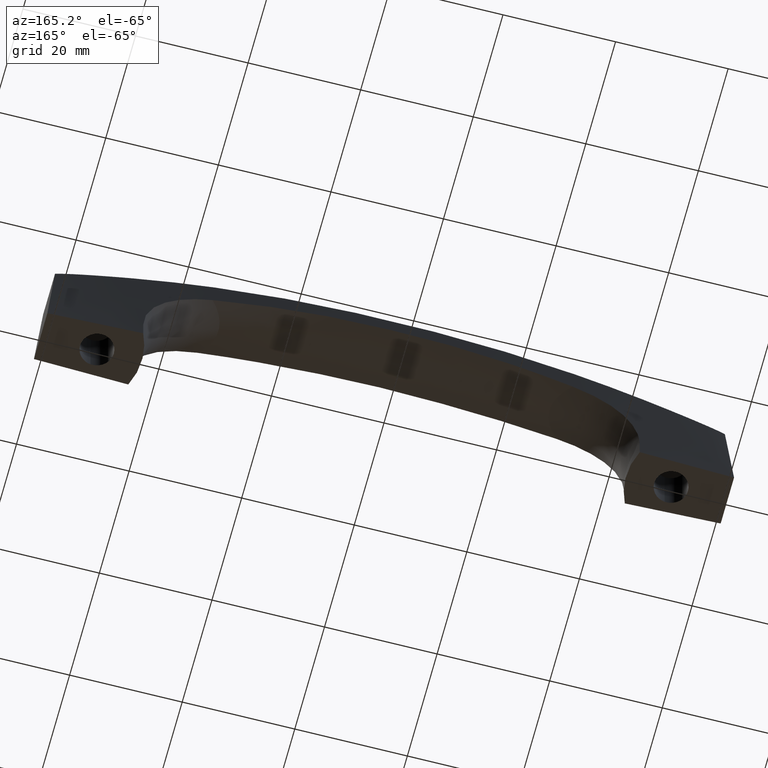
[diagram: clean part render]
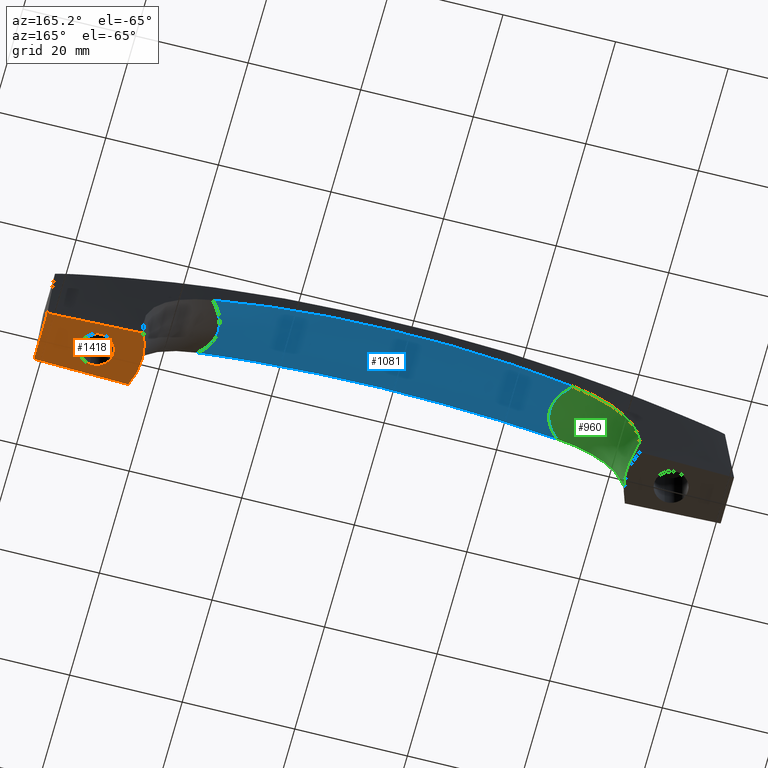
[diagram: same view with three faces highlighted in distinct colors, each labeled with its STEP entity id]
A machine part, auxiliary view with three faces highlighted in distinct colors.
Their STEP definitions:

[orange] entity #1418 — the highlighted face is a freeform B-spline surface patch.
#271=CARTESIAN_POINT('',(51.354402704031180,-2.979028579083759,2.839428E-017));
#272=VERTEX_POINT('',#271);
#278=CARTESIAN_POINT('',(48.000300000000003,0.0,0.0));
#279=VERTEX_POINT('',#278);
#280=CARTESIAN_POINT('',(51.354402704031180,-2.979028579083760,2.839428E-017));
#281=CARTESIAN_POINT('',(51.177972359017275,-3.000000000000000,0.0));
#282=CARTESIAN_POINT('',(51.000300000000003,-3.0,0.0));
#283=CARTESIAN_POINT('',(48.000299999999982,-3.0,0.0));
#284=CARTESIAN_POINT('',(48.000300000000003,0.0,0.0));
#292=(BOUNDED_CURVE()B_SPLINE_CURVE(2,(#280,#281,#282,#283,#284),.UNSPECIFIED.,.F.,.U.)B_SPLINE_CURVE_WITH_KNOTS((3,2,3),(0.229562473508734,0.250000000000000,0.500000000000000),.UNSPECIFIED.)CURVE()GEOMETRIC_REPRESENTATION_ITEM()RATIONAL_B_SPLINE_CURVE((0.956026754174341,0.976055948325551,1.0,0.707106781186548,1.0))REPRESENTATION_ITEM(''));
#293=EDGE_CURVE('',#272,#279,#292,.T.);
#295=CARTESIAN_POINT('',(50.817154380951891,2.994404395238473,2.775558E-017));
#296=VERTEX_POINT('',#295);
#297=CARTESIAN_POINT('',(48.000300000000003,0.0,0.0));
#298=CARTESIAN_POINT('',(48.000299999999989,2.822118199879488,0.0));
#299=CARTESIAN_POINT('',(50.817154380951891,2.994404395238473,2.775558E-017));
#307=(BOUNDED_CURVE()B_SPLINE_CURVE(2,(#297,#298,#299),.UNSPECIFIED.,.F.,.U.)B_SPLINE_CURVE_WITH_KNOTS((3,3),(0.500000000000000,0.739332962190852),.UNSPECIFIED.)CURVE()GEOMETRIC_REPRESENTATION_ITEM()RATIONAL_B_SPLINE_CURVE((1.0,0.719603993343052,0.976072041563651))REPRESENTATION_ITEM(''));
#308=EDGE_CURVE('',#279,#296,#307,.T.);
#382=CARTESIAN_POINT('',(54.000300000000003,0.0,0.0));
#383=VERTEX_POINT('',#382);
#384=CARTESIAN_POINT('',(50.817154380951891,2.994404395238472,2.775558E-017));
#385=CARTESIAN_POINT('',(50.908641709659442,3.0,0.0));
#386=CARTESIAN_POINT('',(51.000300000000003,3.0,0.0));
#387=CARTESIAN_POINT('',(54.000300000000010,3.0,0.0));
#388=CARTESIAN_POINT('',(54.000300000000003,0.0,0.0));
#396=(BOUNDED_CURVE()B_SPLINE_CURVE(2,(#384,#385,#386,#387,#388),.UNSPECIFIED.,.F.,.U.)B_SPLINE_CURVE_WITH_KNOTS((3,2,3),(0.739332962190852,0.750000000000000,1.0),.UNSPECIFIED.)CURVE()GEOMETRIC_REPRESENTATION_ITEM()RATIONAL_B_SPLINE_CURVE((0.976072041563651,0.987502787843496,1.0,0.707106781186548,1.0))REPRESENTATION_ITEM(''));
#397=EDGE_CURVE('',#296,#383,#396,.T.);
#399=CARTESIAN_POINT('',(54.000300000000003,0.0,0.0));
#400=CARTESIAN_POINT('',(54.000300000000010,-2.664523577744385,0.0));
#401=CARTESIAN_POINT('',(51.354402704031180,-2.979028579083760,2.839428E-017));
#409=(BOUNDED_CURVE()B_SPLINE_CURVE(2,(#399,#400,#401),.UNSPECIFIED.,.F.,.U.)B_SPLINE_CURVE_WITH_KNOTS((3,3),(0.0,0.229562473508734),.UNSPECIFIED.)CURVE()GEOMETRIC_REPRESENTATION_ITEM()RATIONAL_B_SPLINE_CURVE((1.0,0.731050832860996,0.956026754174341))REPRESENTATION_ITEM(''));
#410=EDGE_CURVE('',#383,#272,#409,.T.);
#525=CARTESIAN_POINT('',(44.102548297613751,5.023843930014119,0.0));
#526=VERTEX_POINT('',#525);
#534=CARTESIAN_POINT('',(44.102548297613751,-5.023843930014130,0.0));
#535=VERTEX_POINT('',#534);
#536=CARTESIAN_POINT('',(44.102548297613843,-5.023843930014089,0.0));
#537=CARTESIAN_POINT('',(41.786565283648393,-4.336809E-015,0.0));
#538=CARTESIAN_POINT('',(44.102548297613829,5.023843930014082,0.0));
#546=(BOUNDED_CURVE()B_SPLINE_CURVE(2,(#536,#537,#538),.UNSPECIFIED.,.F.,.U.)CURVE()GEOMETRIC_REPRESENTATION_ITEM()QUASI_UNIFORM_CURVE()RATIONAL_B_SPLINE_CURVE((1.0,0.908145975198847,1.0))REPRESENTATION_ITEM(''));
#547=EDGE_CURVE('',#535,#526,#546,.T.);
#1333=CARTESIAN_POINT('',(61.000299999999001,-4.500000000000000,-1.554312E-012));
#1334=VERTEX_POINT('',#1333);
#1340=CARTESIAN_POINT('',(61.000300000000003,4.500000000000119,-4.440892E-013));
#1341=VERTEX_POINT('',#1340);
#1342=CARTESIAN_POINT('',(61.000299999999001,-4.500000000000000,-1.554312E-012));
#1343=CARTESIAN_POINT('',(61.000300000000003,4.500000000000119,-4.440892E-013));
#1344=QUASI_UNIFORM_CURVE('',1,(#1342,#1343),.UNSPECIFIED.,.F.,.U.);
#1345=EDGE_CURVE('',#1334,#1341,#1344,.T.);
#1387=CARTESIAN_POINT('',(42.101201322347833,-5.525725694609764,-3.367663E-016));
#1388=CARTESIAN_POINT('',(42.101201322347833,5.525725425109765,-3.367663E-016));
#1389=CARTESIAN_POINT('',(61.899401735370461,-5.525725694609764,-3.367663E-016));
#1390=CARTESIAN_POINT('',(61.899401735370461,5.525725425109765,-3.367663E-016));
#1391=B_SPLINE_SURFACE_WITH_KNOTS('',1,1,((#1387,#1389),(#1388,#1390)),.UNSPECIFIED.,.F.,.F.,.U.,(2,2),(2,2),(0.0,11.051451119719530),(0.0,19.798200413022631),.UNSPECIFIED.);
#1392=ORIENTED_EDGE('',*,*,#547,.T.);
#1393=CARTESIAN_POINT('',(61.000300000000003,4.500000000000119,-4.440892E-013));
#1394=CARTESIAN_POINT('',(57.418003454618500,4.580440600323540,-4.867277E-013));
#1395=CARTESIAN_POINT('',(52.043963182936587,4.701114871741352,1.155151E-013));
#1396=CARTESIAN_POINT('',(46.099960793854592,4.953844353278069,6.867327E-014));
#1397=CARTESIAN_POINT('',(44.102548297613751,5.023843930014119,0.0));
#1398=B_SPLINE_CURVE_WITH_KNOTS('',3,(#1393,#1394,#1395,#1396,#1397),.UNSPECIFIED.,.F.,.U.,(4,1,4),(0.0,0.096242615002708,0.144379920066499),.UNSPECIFIED.);
#1399=EDGE_CURVE('',#1341,#526,#1398,.T.);
#1400=ORIENTED_EDGE('',*,*,#1399,.F.);
#1401=ORIENTED_EDGE('',*,*,#1345,.F.);
#1402=CARTESIAN_POINT('',(61.000299999999001,-4.500000000000000,-1.554312E-012));
#1403=CARTESIAN_POINT('',(57.418003454618500,-4.580440600323500,-7.639177E-013));
#1404=CARTESIAN_POINT('',(52.043963182936587,-4.701114871741360,8.870168E-014));
#1405=CARTESIAN_POINT('',(46.099960793854592,-4.953844353278074,7.114332E-014));
#1406=CARTESIAN_POINT('',(44.102548297613751,-5.023843930014130,0.0));
#1407=B_SPLINE_CURVE_WITH_KNOTS('',3,(#1402,#1403,#1404,#1405,#1406),.UNSPECIFIED.,.F.,.U.,(4,1,4),(0.0,0.096242615002708,0.144379920066499),.UNSPECIFIED.);
#1408=EDGE_CURVE('',#1334,#535,#1407,.T.);
#1409=ORIENTED_EDGE('',*,*,#1408,.T.);
#1410=EDGE_LOOP('',(#1392,#1400,#1401,#1409));
#1411=FACE_OUTER_BOUND('',#1410,.T.);
#1412=ORIENTED_EDGE('',*,*,#308,.F.);
#1413=ORIENTED_EDGE('',*,*,#293,.F.);
#1414=ORIENTED_EDGE('',*,*,#410,.F.);
#1415=ORIENTED_EDGE('',*,*,#397,.F.);
#1416=EDGE_LOOP('',(#1412,#1413,#1414,#1415));
#1417=FACE_BOUND('',#1416,.T.);
#1418=ADVANCED_FACE('',(#1411,#1417),#1391,.T.);

[blue] entity #1081 — the highlighted face is a freeform B-spline surface patch.
#677=CARTESIAN_POINT('',(31.802017009434401,-5.160834543177030,19.919319875869650));
#678=VERTEX_POINT('',#677);
#714=CARTESIAN_POINT('',(31.803280635618300,5.160807104095160,19.918591792573899));
#715=VERTEX_POINT('',#714);
#716=CARTESIAN_POINT('',(31.802017009434401,-5.160834543177030,19.919319875869650));
#717=CARTESIAN_POINT('',(31.544508817987669,-4.901500882649113,19.861307578703041));
#718=CARTESIAN_POINT('',(30.923088351541612,-4.210686773737158,19.717622094367272));
#719=CARTESIAN_POINT('',(30.116905773373659,-2.999274076952050,19.520848045497718));
#720=CARTESIAN_POINT('',(29.541290944065729,-1.514774810855222,19.374282202826080));
#721=CARTESIAN_POINT('',(29.348528958815368,0.000610195379206,19.324010073250960));
#722=CARTESIAN_POINT('',(29.543432987319640,1.515914695845538,19.373757568973758));
#723=CARTESIAN_POINT('',(30.119720263575331,3.000685804611912,19.520282631177651));
#724=CARTESIAN_POINT('',(30.925697905249940,4.211627782066718,19.717024599959149));
#725=CARTESIAN_POINT('',(31.546325443138080,4.901908171230543,19.860666952074670));
#726=CARTESIAN_POINT('',(31.803280635618300,5.160807104095160,19.918591792573899));
#727=B_SPLINE_CURVE_WITH_KNOTS('',3,(#716,#717,#718,#719,#720,#721,#722,#723,#724,#725,#726),.UNSPECIFIED.,.F.,.U.,(4,1,1,1,1,1,1,1,4),(0.293232866177284,0.332352932474829,0.392498532906652,0.447638232598638,0.500046093444396,0.552502353411976,0.607667971942981,0.667804671063672,0.706851880898741),.UNSPECIFIED.);
#728=EDGE_CURVE('',#678,#715,#727,.T.);
#859=CARTESIAN_POINT('',(-32.102967794721252,5.154311179593861,19.833391371376951));
#860=VERTEX_POINT('',#859);
#861=CARTESIAN_POINT('',(-32.104064012662562,-5.154287948843100,19.832745392253351));
#862=VERTEX_POINT('',#861);
#863=CARTESIAN_POINT('',(-32.102967794721252,5.154311179593861,19.833391371376951));
#864=CARTESIAN_POINT('',(-31.948797914065359,5.012479320042736,19.805820391768830));
#865=CARTESIAN_POINT('',(-31.360987123035041,4.444866403172558,19.700288607543030));
#866=CARTESIAN_POINT('',(-30.436027799691178,3.346896824299333,19.532387222031769));
#867=CARTESIAN_POINT('',(-29.613771482323589,1.741661968851095,19.377687991736469));
#868=CARTESIAN_POINT('',(-29.315358745939381,0.000722287296509,19.322268735789660));
#869=CARTESIAN_POINT('',(-29.614017240884920,-1.739270787928059,19.377290472070701));
#870=CARTESIAN_POINT('',(-30.435559704755700,-3.343591294852289,19.531299817326289));
#871=CARTESIAN_POINT('',(-31.360420740518869,-4.442825770947892,19.699262514551069));
#872=CARTESIAN_POINT('',(-31.949162361995690,-5.011731206885458,19.805030574926871));
#873=CARTESIAN_POINT('',(-32.104064012662562,-5.154287948843100,19.832745392253351));
#874=B_SPLINE_CURVE_WITH_KNOTS('',3,(#863,#864,#865,#866,#867,#868,#869,#870,#871,#872,#873),.UNSPECIFIED.,.F.,.U.,(4,1,1,1,1,1,1,1,4),(0.310411250183889,0.330438622915568,0.388481245858989,0.446839455960733,0.500020828043439,0.553121355654567,0.611404044477657,0.669504496123651,0.689632289277308),.UNSPECIFIED.);
#875=EDGE_CURVE('',#860,#862,#874,.T.);
#961=CARTESIAN_POINT('',(34.991479799693963,-5.983921640103334,19.455476078536964));
#962=CARTESIAN_POINT('',(-0.163339808870348,-5.983921640103334,30.018466790444091));
#963=CARTESIAN_POINT('',(-35.290850920749449,-5.983921640103334,19.365013004213832));
#964=CARTESIAN_POINT('',(34.000864749812067,-0.000005715940712,16.158597918749305));
#965=CARTESIAN_POINT('',(-0.158711363306936,-0.000005715940713,26.422547192938069));
#966=CARTESIAN_POINT('',(-34.291752091479019,-0.000005715940713,16.070695881214327));
#967=CARTESIAN_POINT('',(34.991478377783224,5.983913050891546,19.455471346258300));
#968=CARTESIAN_POINT('',(-0.163339802226762,5.983913050891548,30.018461628926797));
#969=CARTESIAN_POINT('',(-35.290849486661244,5.983913050891546,19.365008275611235));
#977=(BOUNDED_SURFACE()B_SPLINE_SURFACE(2,2,((#961,#964,#967),(#962,#965,#968),(#963,#966,#969)),.UNSPECIFIED.,.F.,.F.,.U.)B_SPLINE_SURFACE_WITH_KNOTS((3,3),(3,3),(34.026917494010917,106.765856706428490),(2.940867399406433,15.762646699714660),.UNSPECIFIED.)GEOMETRIC_REPRESENTATION_ITEM()RATIONAL_B_SPLINE_SURFACE(((0.878783380322358,0.761727416187987,0.878783186482487),(0.841446434279561,0.729363837091741,0.841446248675382),(0.879117455082956,0.762016991423367,0.879117261169396)))REPRESENTATION_ITEM('')SURFACE());
#978=ORIENTED_EDGE('',*,*,#728,.F.);
#979=CARTESIAN_POINT('',(-32.104064012662562,-5.154287948843100,19.832745392253351));
#980=CARTESIAN_POINT('',(-31.455906681658330,-5.168341272719869,20.017790178064690));
#981=CARTESIAN_POINT('',(-30.806174278058261,-5.182374401030033,20.197459848592509));
#982=CARTESIAN_POINT('',(-29.503481521281561,-5.210845616278813,20.546283311777731));
#983=CARTESIAN_POINT('',(-28.850525258233532,-5.225312663392298,20.715448819957171));
#984=CARTESIAN_POINT('',(-27.541442339896118,-5.254122721196410,21.042966978998930));
#985=CARTESIAN_POINT('',(-26.885137477090669,-5.268465991916456,21.201357485574949));
#986=CARTESIAN_POINT('',(-25.570573362361710,-5.296502044259849,21.506766102497089));
#987=CARTESIAN_POINT('',(-24.912233560607081,-5.310196595236666,21.653807584307639));
#988=CARTESIAN_POINT('',(-22.933984569017589,-5.349756705571251,22.077690182591311));
#989=CARTESIAN_POINT('',(-21.610841215804211,-5.374046219307145,22.337269556679821));
#990=CARTESIAN_POINT('',(-18.955749398366500,-5.416893286289576,22.809562641774630));
#991=CARTESIAN_POINT('',(-17.623808960553440,-5.435528113719601,23.022312575885611));
#992=CARTESIAN_POINT('',(-15.619232306274990,-5.458926363941833,23.305976706853251));
#993=CARTESIAN_POINT('',(-14.949753185706140,-5.465963222870101,23.394636664710379));
#994=CARTESIAN_POINT('',(-13.610133762978229,-5.478384429766816,23.559844649126390));
#995=CARTESIAN_POINT('',(-12.939849142172021,-5.483770607724916,23.636416130217441));
#996=CARTESIAN_POINT('',(-10.927563763181251,-5.497268614926988,23.847954272517288));
#997=CARTESIAN_POINT('',(-9.584118443744860,-5.502414041464815,23.964590974590660));
#998=CARTESIAN_POINT('',(-6.893435558068437,-5.506179094508274,24.149691131536962));
#999=CARTESIAN_POINT('',(-5.546215136344048,-5.505190287359071,24.218356982086721));
#1000=CARTESIAN_POINT('',(-3.522712465238101,-5.502927237273293,24.287250287173880));
#1001=CARTESIAN_POINT('',(-2.847649400596666,-5.502044025323405,24.304529316864389));
#1002=CARTESIAN_POINT('',(-1.498098462595619,-5.500620042422374,24.327982365322161));
#1003=CARTESIAN_POINT('',(-0.823448496612311,-5.500079198447363,24.334163948647699));
#1004=CARTESIAN_POINT('',(2.549192115505067,-5.499723905409029,24.338160337276811));
#1005=CARTESIAN_POINT('',(5.245364868618548,-5.507608681366405,24.255673881047208));
#1006=CARTESIAN_POINT('',(8.612875682077734,-5.503931989643172,24.032994450631421));
#1007=CARTESIAN_POINT('',(9.286323247740269,-5.502520490718755,23.982463378262270));
#1008=CARTESIAN_POINT('',(10.631250071406139,-5.497773614711227,23.869261939382501));
#1009=CARTESIAN_POINT('',(11.302929918375529,-5.494432226868222,23.806577164342269));
#1010=CARTESIAN_POINT('',(13.315640330976050,-5.481722045079955,23.600423717370521));
#1011=CARTESIAN_POINT('',(14.654343235281081,-5.469679209812371,23.438866548064109));
#1012=CARTESIAN_POINT('',(17.325628542439450,-5.439425666335707,23.068124090055750));
#1013=CARTESIAN_POINT('',(18.658211582360419,-5.421223580247538,22.858943157455059));
#1014=CARTESIAN_POINT('',(20.652522425907652,-5.389682890040875,22.509630886838959));
#1015=CARTESIAN_POINT('',(21.316544801862289,-5.378451744150816,22.387255049357321));
#1016=CARTESIAN_POINT('',(22.641041180256771,-5.354721779466034,22.131107577540739));
#1017=CARTESIAN_POINT('',(23.301772128543419,-5.342218408457084,21.997292348356030));
#1018=CARTESIAN_POINT('',(25.279484047502098,-5.303146952249571,21.578863519218391));
#1019=CARTESIAN_POINT('',(26.591977726827110,-5.274956802050054,21.277247448973888));
#1020=CARTESIAN_POINT('',(28.552144906749000,-5.231919184926307,20.792146311808921));
#1021=CARTESIAN_POINT('',(29.204106696140219,-5.217463039330730,20.625004704018529));
#1022=CARTESIAN_POINT('',(30.505184054665779,-5.188916759128201,20.280131101550431));
#1023=CARTESIAN_POINT('',(31.154305497132700,-5.174867252474643,20.102418203935159));
#1024=CARTESIAN_POINT('',(31.802017009434401,-5.160834543177030,19.919319875869650));
#1025=B_SPLINE_CURVE_WITH_KNOTS('',3,(#979,#980,#981,#982,#983,#984,#985,#986,#987,#988,#989,#990,#991,#992,#993,#994,#995,#996,#997,#998,#999,#1000,#1001,#1002,#1003,#1004,#1005,#1006,#1007,#1008,#1009,#1010,#1011,#1012,#1013,#1014,#1015,#1016,#1017,#1018,#1019,#1020,#1021,#1022,#1023,#1024),.UNSPECIFIED.,.F.,.U.,(4,2,2,2,2,2,2,2,2,2,2,2,2,2,2,2,2,2,2,2,2,2,4),(0.000006961809216,0.031250000000000,0.062500000000000,0.093750000000000,0.125000000000000,0.187500000000000,0.250000000000000,0.281250000000000,0.312500000000001,0.375000000000000,0.437500000000000,0.468750000000000,0.500000000000000,0.625000000000000,0.656250000000000,0.687500000000000,0.750000000000000,0.812500000000000,0.843750000000000,0.875000000000000,0.937500000000000,0.968750000000000,0.999996374207115),.UNSPECIFIED.);
#1026=EDGE_CURVE('',#862,#678,#1025,.T.);
#1027=ORIENTED_EDGE('',*,*,#1026,.F.);
#1028=ORIENTED_EDGE('',*,*,#875,.F.);
#1029=CARTESIAN_POINT('',(31.803280635618300,5.160807104095160,19.918591792573899));
#1030=CARTESIAN_POINT('',(31.154681565221878,5.174859027118431,20.101955770686558));
#1031=CARTESIAN_POINT('',(30.504531339790610,5.188930627543876,20.279958268528809));
#1032=CARTESIAN_POINT('',(29.201015210098060,5.217530881628706,20.625471555720271));
#1033=CARTESIAN_POINT('',(28.547642380417109,5.232018568023445,20.792961609757779));
#1034=CARTESIAN_POINT('',(27.237747437311871,5.260776982787715,21.117076432513269));
#1035=CARTESIAN_POINT('',(26.581038088897898,5.275051315218908,21.273742482028869));
#1036=CARTESIAN_POINT('',(25.265626552853892,5.302883291444919,21.575676992525828));
#1037=CARTESIAN_POINT('',(24.606878677831240,5.316442074363981,21.720960522956169));
#1038=CARTESIAN_POINT('',(22.627456473892309,5.355524244573550,22.139520279369030));
#1039=CARTESIAN_POINT('',(21.303599289765831,5.379403381075972,22.395486715734791));
#1040=CARTESIAN_POINT('',(18.647234080709179,5.421378946132372,22.860490524626911));
#1041=CARTESIAN_POINT('',(17.314735593004670,5.439567721086537,23.069571907639201));
#1042=CARTESIAN_POINT('',(15.309438525818759,5.462250267141537,23.347685173043160));
#1043=CARTESIAN_POINT('',(14.639719700871421,5.469040823909142,23.434488976540809));
#1044=CARTESIAN_POINT('',(13.299599544235170,5.480950710550645,23.595977173331619));
#1045=CARTESIAN_POINT('',(11.958570415500789,5.491192866494729,23.745384710308532));
#1046=CARTESIAN_POINT('',(10.615714552014561,5.497842692761930,23.870523609129769));
#1047=CARTESIAN_POINT('',(9.271939864736689,5.502557047912999,23.983460779245210));
#1048=CARTESIAN_POINT('',(8.599593458894114,5.503955043911224,24.033832834889690));
#1049=CARTESIAN_POINT('',(6.581212475174895,5.506133639241793,24.167098670075411));
#1050=CARTESIAN_POINT('',(5.233836323089466,5.504894953854032,24.232144837106890));
#1051=CARTESIAN_POINT('',(3.210228687662226,5.502535026837919,24.295746477510900));
#1052=CARTESIAN_POINT('',(2.535128682374726,5.501665761683298,24.311284972035459));
#1053=CARTESIAN_POINT('',(1.185497364577371,5.500362356528542,24.331306343907801));
#1054=CARTESIAN_POINT('',(0.510824537838942,5.499931742028520,24.335797894177599));
#1055=CARTESIAN_POINT('',(-2.861845691656767,5.500320834254172,24.331444880265749));
#1056=CARTESIAN_POINT('',(-5.557754806758765,5.508082641363394,24.241912922039589));
#1057=CARTESIAN_POINT('',(-8.924535673351233,5.503327454431092,24.009969551196530));
#1058=CARTESIAN_POINT('',(-9.597853863817088,5.501649459109411,23.957557648166581));
#1059=CARTESIAN_POINT('',(-10.942497570745340,5.496305848299913,23.840565841832579));
#1060=CARTESIAN_POINT('',(-11.614015189647089,5.492677250211138,23.775994177500110));
#1061=CARTESIAN_POINT('',(-13.626177689743489,5.479138615682539,23.564206031416472));
#1062=CARTESIAN_POINT('',(-14.964433736380020,5.466587835578581,23.398927103653900));
#1063=CARTESIAN_POINT('',(-17.634663600166249,5.435382291393550,23.020803379605571));
#1064=CARTESIAN_POINT('',(-18.966637968431279,5.416734871984019,22.807962232061762));
#1065=CARTESIAN_POINT('',(-20.959913374528110,5.384541672160307,22.453193895761700));
#1066=CARTESIAN_POINT('',(-21.623624582263581,5.373099032267788,22.328997320628400));
#1067=CARTESIAN_POINT('',(-22.947476920675289,5.348974334893006,22.069231280327639));
#1068=CARTESIAN_POINT('',(-23.607869006426981,5.336287859442751,21.933618996358351));
#1069=CARTESIAN_POINT('',(-25.584518713247238,5.296737609255120,21.509848413214559));
#1070=CARTESIAN_POINT('',(-26.896243557139410,5.268323194185083,21.204737807407970));
#1071=CARTESIAN_POINT('',(-28.855186970677011,5.225209203053452,20.714543094898222));
#1072=CARTESIAN_POINT('',(-29.506729519506528,5.210773980219781,20.545729641515539));
#1073=CARTESIAN_POINT('',(-30.806984651328062,5.182356580739229,20.197550166484682));
#1074=CARTESIAN_POINT('',(-31.455692993998369,5.168345347077035,20.018170541384539));
#1075=CARTESIAN_POINT('',(-32.102967794721252,5.154311179593861,19.833391371376951));
#1076=B_SPLINE_CURVE_WITH_KNOTS('',3,(#1029,#1030,#1031,#1032,#1033,#1034,#1035,#1036,#1037,#1038,#1039,#1040,#1041,#1042,#1043,#1044,#1045,#1046,#1047,#1048,#1049,#1050,#1051,#1052,#1053,#1054,#1055,#1056,#1057,#1058,#1059,#1060,#1061,#1062,#1063,#1064,#1065,#1066,#1067,#1068,#1069,#1070,#1071,#1072,#1073,#1074,#1075),.UNSPECIFIED.,.F.,.U.,(4,2,2,2,2,2,2,2,1,2,2,2,2,2,2,2,2,2,2,2,2,2,2,4),(0.000008443473340,0.031250000000000,0.062500000000000,0.093750000000000,0.125000000000000,0.187499999999999,0.249999999999999,0.281249999999999,0.312499999999999,0.343749999999999,0.374999999999999,0.437499999999999,0.468749999999999,0.499999999999999,0.624999999999999,0.656249999999999,0.687499999999999,0.749999999999999,0.812500000000000,0.843750000000000,0.875000000000000,0.937500000000000,0.968750000000000,0.999998244953680),.UNSPECIFIED.);
#1077=EDGE_CURVE('',#715,#860,#1076,.T.);
#1078=ORIENTED_EDGE('',*,*,#1077,.F.);
#1079=EDGE_LOOP('',(#978,#1027,#1028,#1078));
#1080=FACE_OUTER_BOUND('',#1079,.T.);
#1081=ADVANCED_FACE('',(#1080),#977,.T.);

[green] entity #960 — the highlighted face is a freeform B-spline surface patch.
#456=CARTESIAN_POINT('',(-44.080471976316701,4.976199029242720,3.862007608617655));
#457=VERTEX_POINT('',#456);
#465=CARTESIAN_POINT('',(-44.080123622125953,-4.976198646050800,3.863063321320455));
#466=VERTEX_POINT('',#465);
#467=CARTESIAN_POINT('',(-44.080123622125953,-4.976198646050800,3.863063321320455));
#468=CARTESIAN_POINT('',(-44.055078706200653,-4.921220139356964,3.817604139125253));
#469=CARTESIAN_POINT('',(-44.030340676055303,-4.865808668513965,3.772681890721314));
#470=CARTESIAN_POINT('',(-43.802595571470718,-4.344957483811479,3.358934579665394));
#471=CARTESIAN_POINT('',(-43.620078928461609,-3.845758202542275,3.025779444810946));
#472=CARTESIAN_POINT('',(-43.170391992303280,-2.287101506515656,2.203443002221561));
#473=CARTESIAN_POINT('',(-43.003012263341162,-1.171535710375655,1.895755107742223));
#474=CARTESIAN_POINT('',(-42.998149738561459,0.535531635666733,1.886260477123073));
#475=CARTESIAN_POINT('',(-43.038303081648060,1.112018789037740,1.959807133646562));
#476=CARTESIAN_POINT('',(-43.194595288757277,2.228232193399687,2.246146856467746));
#477=CARTESIAN_POINT('',(-43.310664396533689,2.767736997019202,2.458820313278182));
#478=CARTESIAN_POINT('',(-43.627162305549867,3.879815645121048,3.037147284996699));
#479=CARTESIAN_POINT('',(-43.839250205006273,4.446405152688961,3.423981634678812));
#480=CARTESIAN_POINT('',(-44.080471976316701,4.976199029242720,3.862007608617655));
#481=B_SPLINE_CURVE_WITH_KNOTS('',3,(#467,#468,#469,#470,#471,#472,#473,#474,#475,#476,#477,#478,#479,#480),.UNSPECIFIED.,.F.,.U.,(4,2,2,2,2,2,4),(0.303390399023644,0.310896579273460,0.373396579273460,0.498396579273460,0.560896579273460,0.623396579273460,0.695006180249815),.UNSPECIFIED.);
#482=EDGE_CURVE('',#466,#457,#481,.T.);
#771=CARTESIAN_POINT('',(-44.997487440012392,-6.629485466943303,5.399801534104757));
#772=CARTESIAN_POINT('',(-44.987876547379656,-6.614947027373211,5.442203534165203));
#773=CARTESIAN_POINT('',(-42.755630064491697,-3.238217951614580,15.290582776248501));
#774=CARTESIAN_POINT('',(-33.915808716112259,-6.614965847272908,20.178692733079131));
#775=CARTESIAN_POINT('',(-33.877700119476842,-6.629523055888764,20.199765445220407));
#776=CARTESIAN_POINT('',(-44.460279033750652,-5.819324405649311,4.434066540789240));
#777=CARTESIAN_POINT('',(-44.452223569293679,-5.804560233502823,4.479398044471666));
#778=CARTESIAN_POINT('',(-42.542792879515289,-2.304927958250216,15.224571685010114));
#779=CARTESIAN_POINT('',(-32.709693390831383,-5.804579347344842,19.970001788855036));
#780=CARTESIAN_POINT('',(-32.668156411234058,-5.819362575005040,19.990047435055484));
#781=CARTESIAN_POINT('',(-43.977591991861345,-4.879431477012251,3.559731685856995));
#782=CARTESIAN_POINT('',(-43.971683645517160,-4.865374854224288,3.608083317991692));
#783=CARTESIAN_POINT('',(-42.540602228065204,-1.460670645627828,15.319502760962697));
#784=CARTESIAN_POINT('',(-31.609836559590061,-4.865393053382054,19.771737088517629));
#785=CARTESIAN_POINT('',(-31.564649937287186,-4.879467813572827,19.790142151535616));
#786=CARTESIAN_POINT('',(-43.421768421654406,-3.213005668877186,2.548200674066424));
#787=CARTESIAN_POINT('',(-43.418966177026022,-3.202567795621208,2.600343771574206));
#788=CARTESIAN_POINT('',(-42.721201128370922,-0.603514498632813,15.584089230944928));
#789=CARTESIAN_POINT('',(-30.333032363433183,-3.202581311351103,19.537084333978154));
#790=CARTESIAN_POINT('',(-30.283217205343377,-3.213032648156255,19.552980071251529));
#791=CARTESIAN_POINT('',(-43.268200853588880,-2.602392309886483,2.268221430096083));
#792=CARTESIAN_POINT('',(-43.266383015479498,-2.593636712757495,2.321469193114344));
#793=CARTESIAN_POINT('',(-42.809990321913133,-0.395426356809224,15.690035879478884));
#794=CARTESIAN_POINT('',(-29.978584040220404,-2.593648050389253,19.470705090994848));
#795=CARTESIAN_POINT('',(-29.927410164962996,-2.602414940024409,19.485783055979546));
#796=CARTESIAN_POINT('',(-43.058360091456024,-1.343318690555119,1.885455591842791));
#797=CARTESIAN_POINT('',(-43.057934146933569,-1.338542149378648,1.940223964093780));
#798=CARTESIAN_POINT('',(-42.949750807500088,-0.125374358442395,15.850545831342831));
#799=CARTESIAN_POINT('',(-29.493620367970571,-1.338548334871167,19.379428894713179));
#800=CARTESIAN_POINT('',(-29.440572208448636,-1.343331035731471,19.393340825228517));
#801=CARTESIAN_POINT('',(-43.002241588232373,-0.694956773519096,1.782979243489544));
#802=CARTESIAN_POINT('',(-43.002225751736255,-0.692484461534740,1.838176496417901));
#803=CARTESIAN_POINT('',(-42.998190483249552,-0.062519186103686,15.902887125204193));
#804=CARTESIAN_POINT('',(-29.363547893312791,-0.692487663130582,19.354645853900340));
#805=CARTESIAN_POINT('',(-29.309969722219734,-0.694963163212284,19.368209753248493));
#806=CARTESIAN_POINT('',(-42.997890750749448,0.615254878093984,1.774560518675594));
#807=CARTESIAN_POINT('',(-42.997905648579398,0.613066663167172,1.829792213223589));
#808=CARTESIAN_POINT('',(-43.001702688464562,0.055351923169699,15.906805301390033));
#809=CARTESIAN_POINT('',(-29.352930810526040,0.613069496865462,19.352869239351531));
#810=CARTESIAN_POINT('',(-29.299310553514321,0.615260533532275,19.366407368326424));
#811=CARTESIAN_POINT('',(-43.051138245123589,1.280318969306523,1.871484615605181));
#812=CARTESIAN_POINT('',(-43.050762915545533,1.275755987886201,1.926310115961783));
#813=CARTESIAN_POINT('',(-42.955395635441860,0.116350620925472,15.856890476563528));
#814=CARTESIAN_POINT('',(-29.476004979190392,1.275761896833287,19.376484980189264));
#815=CARTESIAN_POINT('',(-29.422887050658879,1.280330762508512,19.390354566290828));
#816=CARTESIAN_POINT('',(-43.256730263593731,2.551551526435258,2.246076885200296));
#817=CARTESIAN_POINT('',(-43.254986109061811,2.542942262810462,2.299412031489666));
#818=CARTESIAN_POINT('',(-42.816818947408883,0.380119796492786,15.698287668976743));
#819=CARTESIAN_POINT('',(-29.950712761299705,2.542953410984357,19.466098659124267));
#820=CARTESIAN_POINT('',(-29.899432551627893,2.551573778299230,19.481115956104713));
#821=CARTESIAN_POINT('',(-43.408240942747426,3.163008231670928,2.522113047200641));
#822=CARTESIAN_POINT('',(-43.405521597011777,3.152699163196584,2.574357530052722));
#823=CARTESIAN_POINT('',(-42.727913128279262,0.583878284215010,15.592674237908289));
#824=CARTESIAN_POINT('',(-30.300229482940605,3.152712512171577,19.531694699082600));
#825=CARTESIAN_POINT('',(-30.250291228917078,3.163034877938284,19.547522894425185));
#826=CARTESIAN_POINT('',(-43.789470295762939,4.324105723561391,3.215184262732869));
#827=CARTESIAN_POINT('',(-43.784622274505928,4.311247194334455,3.264854702200941));
#828=CARTESIAN_POINT('',(-42.599453177211295,1.167793263656546,15.407513899745963));
#829=CARTESIAN_POINT('',(-31.175351838109435,4.311263843032485,19.693071172456460));
#830=CARTESIAN_POINT('',(-31.128560669394801,4.324138961859182,19.710624083397256));
#831=CARTESIAN_POINT('',(-44.021048966691417,4.877442369116698,3.635762409812035));
#832=CARTESIAN_POINT('',(-44.015037307464439,4.863734962469412,3.683922223948620));
#833=CARTESIAN_POINT('',(-42.561430537670525,1.549312380213814,15.328865694206469));
#834=CARTESIAN_POINT('',(-31.705320686855529,4.863752709675543,19.789493139565938));
#835=CARTESIAN_POINT('',(-31.660365547668789,4.877477803506092,19.807964593007561));
#836=CARTESIAN_POINT('',(-44.506362366464629,5.843290762127475,4.513766439848769));
#837=CARTESIAN_POINT('',(-44.498320069587834,5.828700162891808,4.558957441511601));
#838=CARTESIAN_POINT('',(-42.594275278878975,2.374319543339897,15.258101308101732));
#839=CARTESIAN_POINT('',(-32.807942997838488,5.828719051726632,19.986309186529951));
#840=CARTESIAN_POINT('',(-32.766554401662248,5.843328482734929,20.006305839095788));
#841=CARTESIAN_POINT('',(-44.754076027429960,6.264500220712513,4.960564184230287));
#842=CARTESIAN_POINT('',(-44.745149212142501,6.249793417047446,5.004305580924156));
#843=CARTESIAN_POINT('',(-42.652776242970120,2.802638137051373,15.256933548333368));
#844=CARTESIAN_POINT('',(-33.367629298194529,6.249812455649494,20.084815445120952));
#845=CARTESIAN_POINT('',(-33.327964607245647,6.264538243491883,20.105439399110367));
#846=CARTESIAN_POINT('',(-45.014845549419697,6.655632871542402,5.429409989864950));
#847=CARTESIAN_POINT('',(-45.005167217072419,6.641045012973843,5.471715200128530));
#848=CARTESIAN_POINT('',(-42.758712784511488,3.255031971987113,15.291250602185395));
#849=CARTESIAN_POINT('',(-33.953029453358475,6.641063896782873,20.185926913735532));
#850=CARTESIAN_POINT('',(-33.915043426247699,6.655670588354244,20.207041607516476));
#858=(BOUNDED_SURFACE()B_SPLINE_SURFACE(2,3,((#771,#776,#781,#786,#791,#796,#801,#806,#811,#816,#821,#826,#831,#836,#841,#846),(#772,#777,#782,#787,#792,#797,#802,#807,#812,#817,#822,#827,#832,#837,#842,#847),(#773,#778,#783,#788,#793,#798,#803,#808,#813,#818,#823,#828,#833,#838,#843,#848),(#774,#779,#784,#789,#794,#799,#804,#809,#814,#819,#824,#829,#834,#839,#844,#849),(#775,#780,#785,#790,#795,#800,#805,#810,#815,#820,#825,#830,#835,#840,#845,#850)),.UNSPECIFIED.,.F.,.F.,.U.)B_SPLINE_SURFACE_WITH_KNOTS((3,1,1,3),(4,2,2,2,2,2,2,4),(0.0,0.123625531281742,24.805482453442469,24.929267908922171),(0.0,4.426854332320839,6.814050887147090,9.201247441973308,11.588443996799560,13.975640551625810,16.362837106452030,18.492670185830189),.UNSPECIFIED.)GEOMETRIC_REPRESENTATION_ITEM()RATIONAL_B_SPLINE_SURFACE(((1.001351734406595,1.001524774920097,1.001704839734677,1.001929657431293,1.001995532115552,1.002087070435353,1.002112502471980,1.002114467275208,1.002090317467541,1.002000503633192,1.001935405061651,1.001780756783289,1.001690669879289,1.001514758484433,1.001429804152074,1.001346167032394),(1.000675867203297,1.000762387460049,1.000852419867338,1.000964828715647,1.000997766057776,1.001043535217676,1.001056251235990,1.001057233637604,1.001045158733770,1.001000251816596,1.000967702530825,1.000890378391644,1.000845334939644,1.000757379242216,1.000714902076037,1.000673083516197),(0.865063005697816,0.847789222719014,0.829814238328295,0.807371793940299,0.800795848361706,0.791658028330551,0.789119273258029,0.788923136619963,0.791333893084961,0.800299566219159,0.806798036284214,0.822235812932007,0.831228745265802,0.848789114203317,0.857269687166144,0.865618769268833),(1.000676741517198,1.000763373698100,1.000853522572922,1.000966076835326,1.000999056785791,1.001044885153495,1.001057617621477,1.001058601293944,1.001046510769798,1.001001545760233,1.000968954368124,1.000891530201054,1.000846428480039,1.000758359001548,1.000715826886147,1.000673954229070),(1.001353483034395,1.001526747396200,1.001707045145844,1.001932153670653,1.001998113571581,1.002089770306989,1.002115235242954,1.002117202587887,1.002093021539596,1.002003091520465,1.001937908736247,1.001783060402107,1.001692856960077,1.001516718003095,1.001431653772293,1.001347908458139)))REPRESENTATION_ITEM('')SURFACE());
#859=CARTESIAN_POINT('',(-32.102967794721252,5.154311179593861,19.833391371376951));
#860=VERTEX_POINT('',#859);
#861=CARTESIAN_POINT('',(-32.104064012662562,-5.154287948843100,19.832745392253351));
#862=VERTEX_POINT('',#861);
#863=CARTESIAN_POINT('',(-32.102967794721252,5.154311179593861,19.833391371376951));
#864=CARTESIAN_POINT('',(-31.948797914065359,5.012479320042736,19.805820391768830));
#865=CARTESIAN_POINT('',(-31.360987123035041,4.444866403172558,19.700288607543030));
#866=CARTESIAN_POINT('',(-30.436027799691178,3.346896824299333,19.532387222031769));
#867=CARTESIAN_POINT('',(-29.613771482323589,1.741661968851095,19.377687991736469));
#868=CARTESIAN_POINT('',(-29.315358745939381,0.000722287296509,19.322268735789660));
#869=CARTESIAN_POINT('',(-29.614017240884920,-1.739270787928059,19.377290472070701));
#870=CARTESIAN_POINT('',(-30.435559704755700,-3.343591294852289,19.531299817326289));
#871=CARTESIAN_POINT('',(-31.360420740518869,-4.442825770947892,19.699262514551069));
#872=CARTESIAN_POINT('',(-31.949162361995690,-5.011731206885458,19.805030574926871));
#873=CARTESIAN_POINT('',(-32.104064012662562,-5.154287948843100,19.832745392253351));
#874=B_SPLINE_CURVE_WITH_KNOTS('',3,(#863,#864,#865,#866,#867,#868,#869,#870,#871,#872,#873),.UNSPECIFIED.,.F.,.U.,(4,1,1,1,1,1,1,1,4),(0.310411250183889,0.330438622915568,0.388481245858989,0.446839455960733,0.500020828043439,0.553121355654567,0.611404044477657,0.669504496123651,0.689632289277308),.UNSPECIFIED.);
#875=EDGE_CURVE('',#860,#862,#874,.T.);
#876=ORIENTED_EDGE('',*,*,#875,.T.);
#877=CARTESIAN_POINT('',(-44.080123622125953,-4.976198646050800,3.863063321320455));
#878=CARTESIAN_POINT('',(-44.074846531819063,-4.965129320209494,4.766938464016099));
#879=CARTESIAN_POINT('',(-44.009413938881252,-4.956398435922593,5.660763221280451));
#880=CARTESIAN_POINT('',(-43.818278474065373,-4.947069328119982,6.986074986679090));
#881=CARTESIAN_POINT('',(-43.738959792354997,-4.944589086302448,7.425311074515220));
#882=CARTESIAN_POINT('',(-43.547505655461627,-4.940952283483406,8.298300734893024));
#883=CARTESIAN_POINT('',(-43.435373743952873,-4.939795777385291,8.732054900673731));
#884=CARTESIAN_POINT('',(-43.240705976309478,-4.939111221742381,9.378263863237931));
#885=CARTESIAN_POINT('',(-43.171398050224802,-4.939058165529024,9.592928629102101));
#886=CARTESIAN_POINT('',(-43.060506757744271,-4.939249203797560,9.913768066510594));
#887=CARTESIAN_POINT('',(-43.022423633019812,-4.939358029550435,10.020408908724070));
#888=CARTESIAN_POINT('',(-42.944261647837223,-4.939665091330699,10.232346802194471));
#889=CARTESIAN_POINT('',(-42.904146612589606,-4.939863377257449,10.337749550648860));
#890=CARTESIAN_POINT('',(-42.698379665815672,-4.941077191557993,10.861920515189890));
#891=CARTESIAN_POINT('',(-42.517168831399843,-4.942760428381242,11.272169362327970));
#892=CARTESIAN_POINT('',(-41.922507205042358,-4.949882083757441,12.474975532044700));
#893=CARTESIAN_POINT('',(-41.458191180679222,-4.957412103816399,13.239682020885621));
#894=CARTESIAN_POINT('',(-40.853271038589448,-4.968644984555969,14.054774031111050));
#895=CARTESIAN_POINT('',(-40.784907450905962,-4.969931018155694,14.144710077086611));
#896=CARTESIAN_POINT('',(-40.645852151758902,-4.972576834387818,14.323307590039819));
#897=CARTESIAN_POINT('',(-40.575110790273030,-4.973937615676182,14.412024425748870));
#898=CARTESIAN_POINT('',(-40.360493369073851,-4.978104604997530,14.674872561604840));
#899=CARTESIAN_POINT('',(-40.213888784528557,-4.981001856092457,14.846145913419830));
#900=CARTESIAN_POINT('',(-39.763723247557323,-4.990000241315147,15.348345745505579));
#901=CARTESIAN_POINT('',(-39.449814871684183,-4.996400123508437,15.667657077111970));
#902=CARTESIAN_POINT('',(-38.468384056446212,-5.016702651595840,16.581021813899969));
#903=CARTESIAN_POINT('',(-37.761328977120982,-5.031710143273696,17.130700047740859));
#904=CARTESIAN_POINT('',(-36.909581144306571,-5.050025497104862,17.685882722635789));
#905=CARTESIAN_POINT('',(-36.814053491857813,-5.052082675586596,17.746751286951021));
#906=CARTESIAN_POINT('',(-36.622044964291078,-5.056222850953624,17.866350933094989));
#907=CARTESIAN_POINT('',(-36.332614427650533,-5.062471559032242,18.042547405208008));
#908=CARTESIAN_POINT('',(-36.039020603310583,-5.068830154291908,18.209338246047121));
#909=CARTESIAN_POINT('',(-35.446486504736647,-5.081680359388210,18.530841712758630));
#910=CARTESIAN_POINT('',(-35.044345838552019,-5.090423872579568,18.729097184900208));
#911=CARTESIAN_POINT('',(-33.817927664355729,-5.117091754547421,19.278325488932111));
#912=CARTESIAN_POINT('',(-32.973677311581909,-5.135433933836556,19.584181355654550));
#913=CARTESIAN_POINT('',(-32.104064012662562,-5.154287948843100,19.832745392253351));
#914=B_SPLINE_CURVE_WITH_KNOTS('',3,(#877,#878,#879,#880,#881,#882,#883,#884,#885,#886,#887,#888,#889,#890,#891,#892,#893,#894,#895,#896,#897,#898,#899,#900,#901,#902,#903,#904,#905,#906,#907,#908,#909,#910,#911,#912,#913),.UNSPECIFIED.,.F.,.U.,(4,2,2,2,2,2,2,2,2,2,2,2,2,2,2,1,2,2,4),(0.000030185278820,0.124999999999998,0.187499999999997,0.249999999999996,0.281249999999996,0.296874999999995,0.312499999999995,0.374999999999995,0.499999999999996,0.515624999999996,0.531249999999996,0.562499999999996,0.624999999999997,0.749999999999998,0.765624999999998,0.781249999999998,0.812499999999999,0.874999999999999,0.999979244571882),.UNSPECIFIED.);
#915=EDGE_CURVE('',#466,#862,#914,.T.);
#916=ORIENTED_EDGE('',*,*,#915,.F.);
#917=ORIENTED_EDGE('',*,*,#482,.T.);
#918=CARTESIAN_POINT('',(-32.102967794721252,5.154311179593861,19.833391371376951));
#919=CARTESIAN_POINT('',(-32.972299634278457,5.135462734165619,19.584989880666431));
#920=CARTESIAN_POINT('',(-33.814608787442957,5.117162328074421,19.279802588987430));
#921=CARTESIAN_POINT('',(-35.036070160883810,5.090600005018578,18.733625536337911));
#922=CARTESIAN_POINT('',(-35.436209702057482,5.081898902040868,18.536739402651271));
#923=CARTESIAN_POINT('',(-36.221630285255600,5.064861764463123,18.111740404708009));
#924=CARTESIAN_POINT('',(-36.606912512460269,5.056526036607040,17.883630015949681));
#925=CARTESIAN_POINT('',(-37.172836516576538,5.044350955299373,17.516245005731069));
#926=CARTESIAN_POINT('',(-37.359474885829087,5.040347429631135,17.389573632919131));
#927=CARTESIAN_POINT('',(-37.636291264480278,5.034431835836291,17.192964487200360));
#928=CARTESIAN_POINT('',(-37.727962254565888,5.032476589726223,17.126378219627050));
#929=CARTESIAN_POINT('',(-37.909358071055223,5.028615811441935,16.991625503450329));
#930=CARTESIAN_POINT('',(-38.358501539694167,5.019077019028637,16.650422724853328));
#931=CARTESIAN_POINT('',(-38.785890977894837,5.010111520566278,16.287591335217488));
#932=CARTESIAN_POINT('',(-39.769164416897652,4.989757632898813,15.374578697389779));
#933=CARTESIAN_POINT('',(-40.368108483614073,4.977633640775579,14.709659119754891));
#934=CARTESIAN_POINT('',(-40.974863360050477,4.966342557392371,13.894942284964941));
#935=CARTESIAN_POINT('',(-41.041347684309763,4.965121836266170,13.803490499686619));
#936=CARTESIAN_POINT('',(-41.172435326133872,4.962751459620454,13.618716333691630));
#937=CARTESIAN_POINT('',(-41.236977614136293,4.961602963942619,13.525473628311691));
#938=CARTESIAN_POINT('',(-41.426815446387977,4.958284881032014,13.244376127207770));
#939=CARTESIAN_POINT('',(-41.548638207946873,4.956237045645935,13.054711772249661));
#940=CARTESIAN_POINT('',(-41.900292811670802,4.950599655795651,12.479108883022000));
#941=CARTESIAN_POINT('',(-42.116324106724882,4.947517073271304,12.086566801922430));
#942=CARTESIAN_POINT('',(-42.711861315418382,4.940363789665850,10.883791388551071));
#943=CARTESIAN_POINT('',(-43.039044917390022,4.938391644619666,10.048520963010869));
#944=CARTESIAN_POINT('',(-43.366285102044543,4.939503806308785,8.965317747851792));
#945=CARTESIAN_POINT('',(-43.427380960256720,4.939904316368611,8.747495155705341));
#946=CARTESIAN_POINT('',(-43.540777041792303,4.941048734155127,8.311086583124881));
#947=CARTESIAN_POINT('',(-43.593150828076347,4.941792860391582,8.092258898038821));
#948=CARTESIAN_POINT('',(-43.737772931501020,4.944525396538586,7.433973931548628));
#949=CARTESIAN_POINT('',(-43.817550507108983,4.947013414401662,6.992718853670014));
#950=CARTESIAN_POINT('',(-43.945641203626749,4.953251425835061,6.105672755919070));
#951=CARTESIAN_POINT('',(-43.993941872377228,4.957001824717789,5.659879940272414));
#952=CARTESIAN_POINT('',(-44.060035270576762,4.965706976798937,4.764121963503190));
#953=CARTESIAN_POINT('',(-44.077839359926749,4.970661329519480,4.314158440420451));
#954=CARTESIAN_POINT('',(-44.080471976316701,4.976199029242720,3.862007608617655));
#955=B_SPLINE_CURVE_WITH_KNOTS('',3,(#918,#919,#920,#921,#922,#923,#924,#925,#926,#927,#928,#929,#930,#931,#932,#933,#934,#935,#936,#937,#938,#939,#940,#941,#942,#943,#944,#945,#946,#947,#948,#949,#950,#951,#952,#953,#954),.UNSPECIFIED.,.F.,.U.,(4,2,2,2,2,2,1,2,2,2,2,2,2,2,2,2,2,2,4),(0.000015682091686,0.125000000000002,0.187500000000004,0.250000000000006,0.281250000000007,0.296875000000007,0.312500000000008,0.375000000000008,0.500000000000009,0.515625000000009,0.531250000000009,0.562500000000009,0.625000000000007,0.750000000000005,0.781250000000004,0.812500000000004,0.875000000000002,0.937500000000001,0.999968827057594),.UNSPECIFIED.);
#956=EDGE_CURVE('',#860,#457,#955,.T.);
#957=ORIENTED_EDGE('',*,*,#956,.F.);
#958=EDGE_LOOP('',(#876,#916,#917,#957));
#959=FACE_OUTER_BOUND('',#958,.T.);
#960=ADVANCED_FACE('',(#959),#858,.F.);